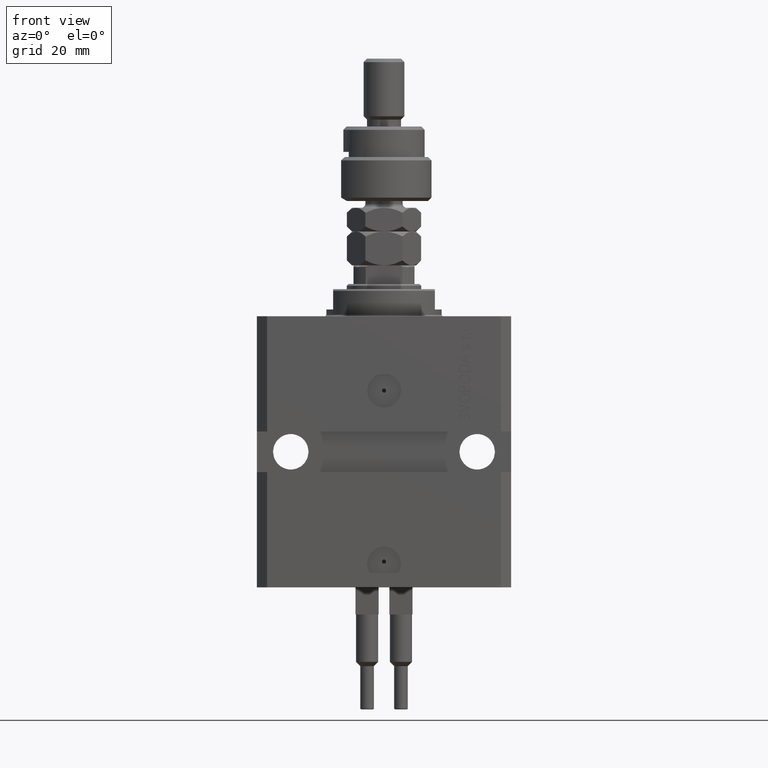
[diagram: clean part render]
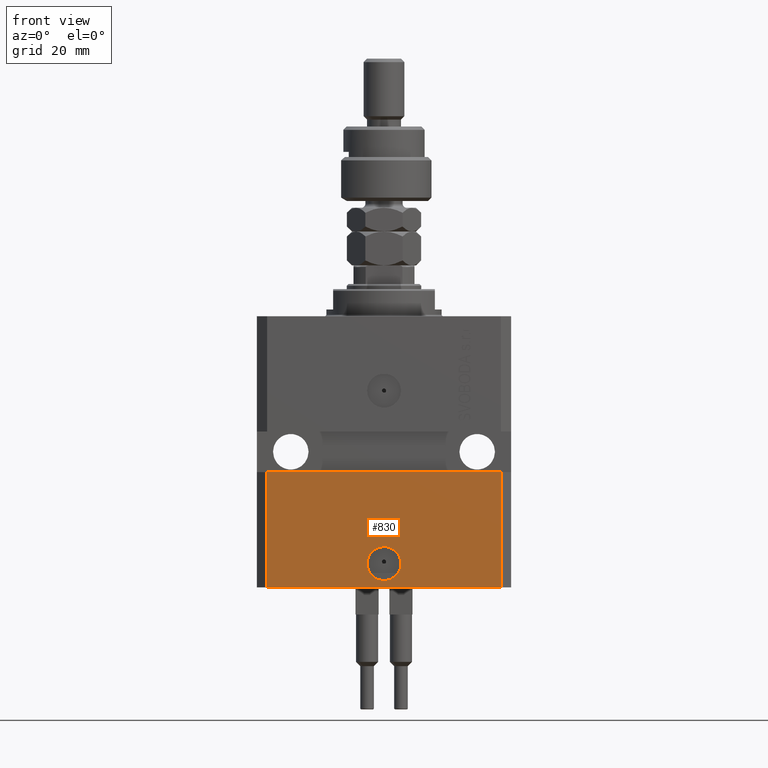
[diagram: same view with one face highlighted and labeled with its STEP entity id]
A machine part, front view. The second image highlights one B-rep face of the part: STEP entity #830.
In plain terms, the highlighted planar face has unit normal (0, -1, 0).
Its self-contained STEP definition (entity closure, byte-faithful):
#546 = VERTEX_POINT ( 'NONE', #3203 ) ;
#830 = ADVANCED_FACE ( 'NONE', ( #16288, #27511 ), #31606, .T. ) ;
#2033 = VERTEX_POINT ( 'NONE', #8405 ) ;
#3203 = CARTESIAN_POINT ( 'NONE',  ( -5.000000000000006217, -27.49999999999999645, -73.00000000000000000 ) ) ;
#3739 = AXIS2_PLACEMENT_3D ( 'NONE', #4580, #12740, #24445 ) ;
#4580 = CARTESIAN_POINT ( 'NONE',  ( -34.49999999999998579, -27.49999999999999645, -80.00000000000000000 ) ) ;
#5090 = CARTESIAN_POINT ( 'NONE',  ( 5.000000000000006217, -27.49999999999999645, -73.00000000000000000 ) ) ;
#5658 = ORIENTED_EDGE ( 'NONE', *, *, #30037, .F. ) ;
#6302 = VERTEX_POINT ( 'NONE', #37989 ) ;
#6983 = EDGE_LOOP ( 'NONE', ( #5658, #22999, #25819, #34815 ) ) ;
#8405 = CARTESIAN_POINT ( 'NONE',  ( 34.49999999999999289, -27.49999999999999645, -80.00000000000000000 ) ) ;
#8764 = DIRECTION ( 'NONE',  ( 0.000000000000000000, 0.000000000000000000, 1.000000000000000000 ) ) ;
#10961 = EDGE_CURVE ( 'NONE', #546, #11668, #17841, .T. ) ;
#11668 = VERTEX_POINT ( 'NONE', #5090 ) ;
#12590 = EDGE_LOOP ( 'NONE', ( #14996, #43122 ) ) ;
#12740 = DIRECTION ( 'NONE',  ( 0.000000000000000000, -1.000000000000000000, 0.000000000000000000 ) ) ;
#13072 = DIRECTION ( 'NONE',  ( 1.000000000000000000, 9.251858538542972814E-17, 0.000000000000000000 ) ) ;
#13336 = CARTESIAN_POINT ( 'NONE',  ( -34.49999999999998579, -27.49999999999999645, -80.00000000000000000 ) ) ;
#13448 = CARTESIAN_POINT ( 'NONE',  ( -34.49999999999998579, -27.49999999999999645, -80.00000000000000000 ) ) ;
#14352 = EDGE_CURVE ( 'NONE', #6302, #19506, #48667, .T. ) ;
#14996 = ORIENTED_EDGE ( 'NONE', *, *, #18940, .F. ) ;
#15434 = CARTESIAN_POINT ( 'NONE',  ( -37.50000000000000000, -27.50000000000000000, -46.00000000000000000 ) ) ;
#16200 = AXIS2_PLACEMENT_3D ( 'NONE', #21871, #44876, #22122 ) ;
#16288 = FACE_BOUND ( 'NONE', #12590, .T. ) ;
#16891 = LINE ( 'NONE', #15434, #37203 ) ;
#16905 = DIRECTION ( 'NONE',  ( 1.000000000000000000, 0.000000000000000000, 0.000000000000000000 ) ) ;
#17393 = LINE ( 'NONE', #13336, #35318 ) ;
#17841 = CIRCLE ( 'NONE', #16200, 5.000000000000006217 ) ;
#18940 = EDGE_CURVE ( 'NONE', #11668, #546, #25466, .T. ) ;
#19506 = VERTEX_POINT ( 'NONE', #22632 ) ;
#19718 = LINE ( 'NONE', #24307, #39737 ) ;
#19933 = CARTESIAN_POINT ( 'NONE',  ( 0.000000000000000000, -27.49999999999999645, -73.00000000000000000 ) ) ;
#20430 = EDGE_CURVE ( 'NONE', #6302, #2033, #17393, .T. ) ;
#21871 = CARTESIAN_POINT ( 'NONE',  ( 0.000000000000000000, -27.49999999999999645, -73.00000000000000000 ) ) ;
#22122 = DIRECTION ( 'NONE',  ( 1.000000000000000000, 0.000000000000000000, 0.000000000000000000 ) ) ;
#22632 = CARTESIAN_POINT ( 'NONE',  ( -34.49999999999998579, -27.50000000000000000, -46.00000000000000000 ) ) ;
#22999 = ORIENTED_EDGE ( 'NONE', *, *, #14352, .F. ) ;
#24307 = CARTESIAN_POINT ( 'NONE',  ( 34.49999999999999289, -27.49999999999999645, -80.00000000000000000 ) ) ;
#24445 = DIRECTION ( 'NONE',  ( 0.000000000000000000, -0.000000000000000000, -1.000000000000000000 ) ) ;
#25466 = CIRCLE ( 'NONE', #41781, 5.000000000000006217 ) ;
#25819 = ORIENTED_EDGE ( 'NONE', *, *, #20430, .T. ) ;
#27511 = FACE_OUTER_BOUND ( 'NONE', #6983, .T. ) ;
#29392 = VECTOR ( 'NONE', #44583, 1000.000000000000000 ) ;
#30037 = EDGE_CURVE ( 'NONE', #19506, #45187, #16891, .T. ) ;
#31203 = CARTESIAN_POINT ( 'NONE',  ( 34.49999999999999289, -27.49999999999999289, -46.00000000000000000 ) ) ;
#31606 = PLANE ( 'NONE',  #3739 ) ;
#31969 = EDGE_CURVE ( 'NONE', #2033, #45187, #19718, .T. ) ;
#34815 = ORIENTED_EDGE ( 'NONE', *, *, #31969, .T. ) ;
#35318 = VECTOR ( 'NONE', #16905, 1000.000000000000000 ) ;
#35506 = DIRECTION ( 'NONE',  ( 1.176083712526788232E-16, -1.000000000000000000, 0.000000000000000000 ) ) ;
#37203 = VECTOR ( 'NONE', #13072, 1000.000000000000000 ) ;
#37989 = CARTESIAN_POINT ( 'NONE',  ( -34.49999999999998579, -27.49999999999999645, -80.00000000000000000 ) ) ;
#39737 = VECTOR ( 'NONE', #8764, 1000.000000000000000 ) ;
#41781 = AXIS2_PLACEMENT_3D ( 'NONE', #19933, #35506, #42170 ) ;
#42170 = DIRECTION ( 'NONE',  ( 1.000000000000000000, 0.000000000000000000, 0.000000000000000000 ) ) ;
#43122 = ORIENTED_EDGE ( 'NONE', *, *, #10961, .F. ) ;
#44583 = DIRECTION ( 'NONE',  ( 0.000000000000000000, 0.000000000000000000, 1.000000000000000000 ) ) ;
#44876 = DIRECTION ( 'NONE',  ( 1.176083712526788232E-16, -1.000000000000000000, 0.000000000000000000 ) ) ;
#45187 = VERTEX_POINT ( 'NONE', #31203 ) ;
#48667 = LINE ( 'NONE', #13448, #29392 ) ;